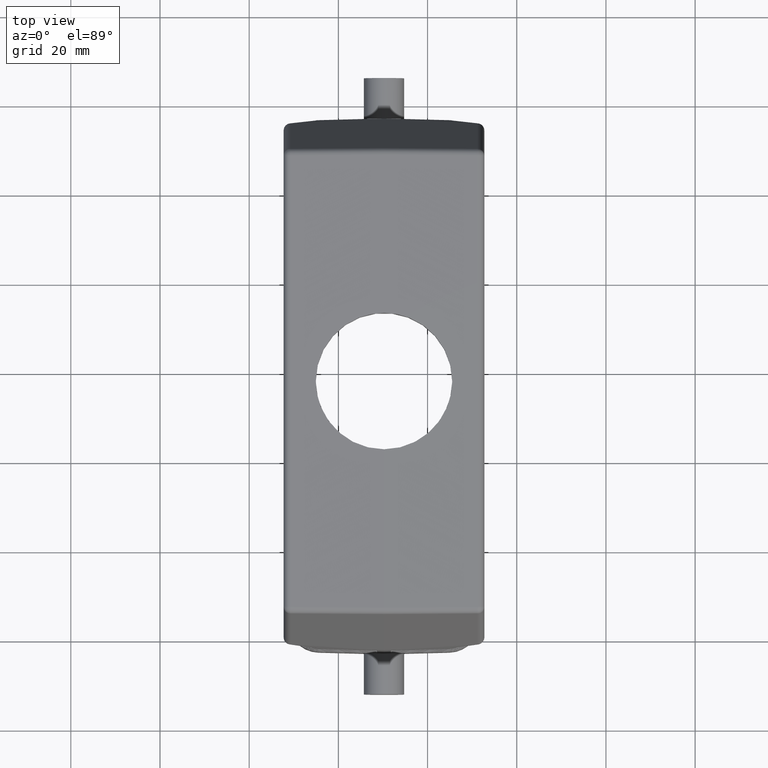
[diagram: clean part render]
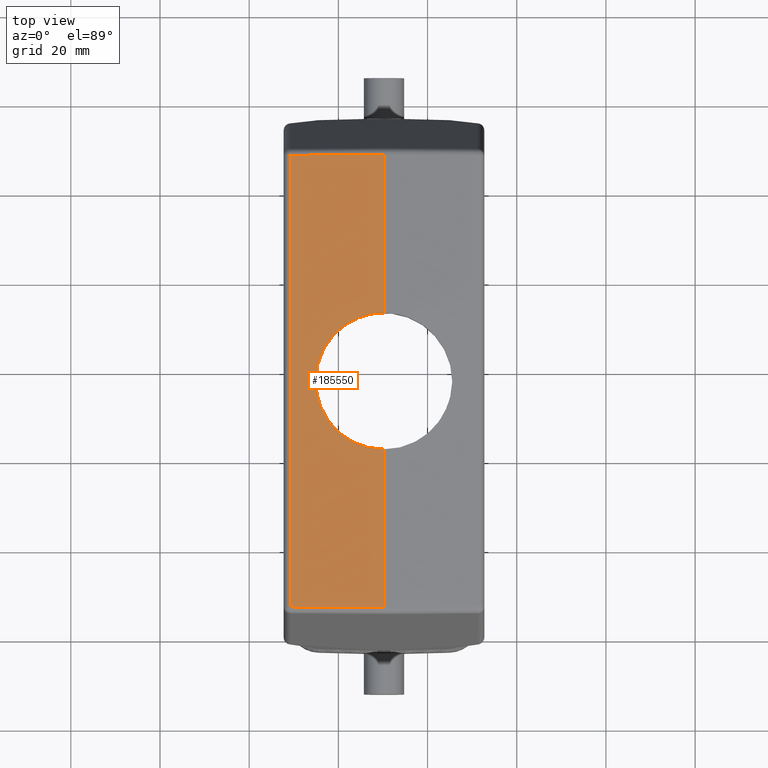
[diagram: same view with one face highlighted and labeled with its STEP entity id]
A machine part, top view. The second image highlights one B-rep face of the part: STEP entity #185550.
In plain terms, the highlighted planar face has unit normal (0.0087, 0, -1).
Its self-contained STEP definition (entity closure, byte-faithful):
#62830=CARTESIAN_POINT('',(395.582514349959,15.106265185917,
76.2326290096361));
#62840=VERTEX_POINT('',#62830);
#62890=CARTESIAN_POINT('',(395.582514349959,45.706265185917,
76.2326290096361));
#62900=VERTEX_POINT('',#62890);
#62930=CARTESIAN_POINT('',(395.582514349959,44.3725639329094,
76.2326290096361));
#62940=DIRECTION('',(0.,-1.,0.));
#62950=VECTOR('',#62940,1.);
#62960=LINE('',#62930,#62950);
#62970=CARTESIAN_POINT('',(395.582514349959,81.1990471307087,
76.2326290096361));
#62980=VERTEX_POINT('',#62970);
#62990=EDGE_CURVE('',#62980,#62900,#62960,.T.);
#63210=CARTESIAN_POINT('',(395.582514349959,-20.3865167588748,
76.2326290096361));
#63220=VERTEX_POINT('',#63210);
#63250=EDGE_CURVE('',#62840,#63220,#62960,.T.);
#143490=CARTESIAN_POINT('',(374.569424546712,-20.2326439635857,
76.0492505530478));
#143500=VERTEX_POINT('',#143490);
#143940=CARTESIAN_POINT('',(388.865731149592,-20.3373316929912,
76.1740125306673));
#143950=DIRECTION('',(0.999935116152516,-0.00732223641885956,
0.00872630155800004));
#143960=VECTOR('',#143950,1.);
#143970=LINE('',#143940,#143960);
#143980=EDGE_CURVE('',#143500,#63220,#143970,.T.);
#184410=CARTESIAN_POINT('',(374.569424546712,81.0451743354196,
76.0492505530478));
#184420=VERTEX_POINT('',#184410);
#185020=CARTESIAN_POINT('',(388.865731149592,81.1498620648251,
76.1740125306673));
#185030=DIRECTION('',(0.999935116152516,0.00732223641885955,
0.00872630155800004));
#185040=VECTOR('',#185030,1.);
#185050=LINE('',#185020,#185040);
#185060=EDGE_CURVE('',#184420,#62980,#185050,.T.);
#185270=CARTESIAN_POINT('',(395.582514349959,80.736265185917,
76.2326290096361));
#185280=DIRECTION('',(0.00872653549837393,0.,-0.999961923064171));
#185290=DIRECTION('',(0.999961923064171,0.,0.00872653549837393));
#185300=AXIS2_PLACEMENT_3D('',#185270,#185280,#185290);
#185310=PLANE('',#185300);
#185320=ORIENTED_EDGE('',*,*,#143980,.T.);
#185330=CARTESIAN_POINT('',(374.569424546712,80.736265185917,
76.0492505530478));
#185340=DIRECTION('',(0.,1.,0.));
#185350=VECTOR('',#185340,1.);
#185360=LINE('',#185330,#185350);
#185370=EDGE_CURVE('',#143500,#184420,#185360,.T.);
#185380=ORIENTED_EDGE('',*,*,#185370,.F.);
#185390=ORIENTED_EDGE('',*,*,#185060,.F.);
#185400=ORIENTED_EDGE('',*,*,#62990,.F.);
#185410=CARTESIAN_POINT('',(395.582514349959,30.406265185917,
76.2326290096361));
#185420=DIRECTION('',(0.00872653549837393,0.,-0.999961923064171));
#185430=DIRECTION('',(0.999961923064171,0.,0.00872653549837394));
#185440=AXIS2_PLACEMENT_3D('',#185410,#185420,#185430);
#185450=ELLIPSE('',#185440,15.3005825993018,15.3);
#185460=CARTESIAN_POINT('',(380.282514349959,30.406265185917,
76.0991079324375));
#185470=VERTEX_POINT('',#185460);
#185480=EDGE_CURVE('',#185470,#62900,#185450,.T.);
#185490=ORIENTED_EDGE('',*,*,#185480,.T.);
#185500=EDGE_CURVE('',#62840,#185470,#185450,.T.);
#185510=ORIENTED_EDGE('',*,*,#185500,.T.);
#185520=ORIENTED_EDGE('',*,*,#63250,.F.);
#185530=EDGE_LOOP('',(#185520,#185510,#185490,#185400,#185390,#185380,
#185320));
#185540=FACE_OUTER_BOUND('',#185530,.T.);
#185550=ADVANCED_FACE('',(#185540),#185310,.F.);